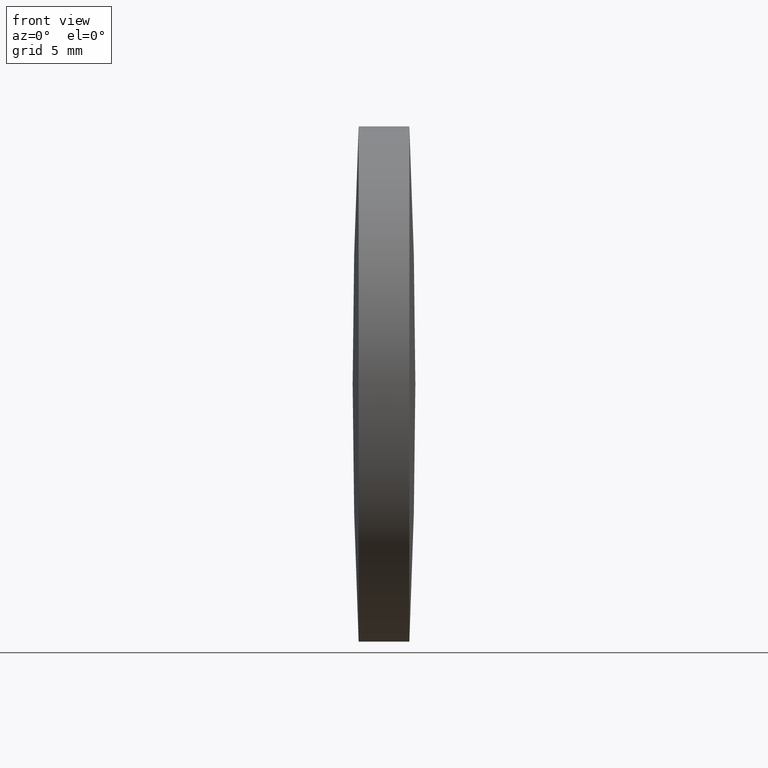
[diagram: clean part render]
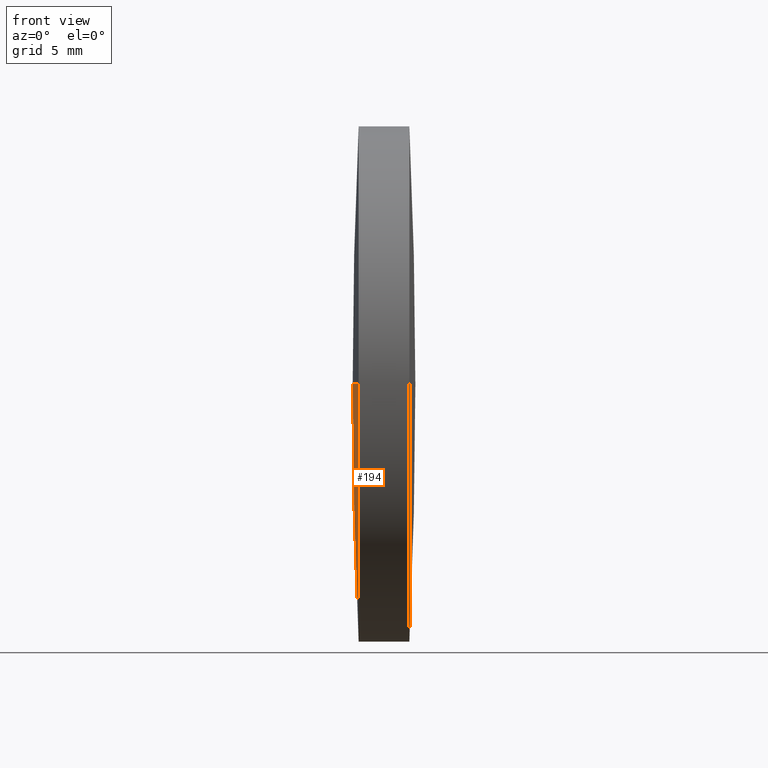
[diagram: same view with one face highlighted and labeled with its STEP entity id]
A machine part, front view. The second image highlights one B-rep face of the part: STEP entity #194.
In plain terms, the highlighted spherical surface has radius 273.559 mm.
Its self-contained STEP definition (entity closure, byte-faithful):
#7 = VERTEX_POINT ( 'NONE', #86 ) ;
#8 = DIRECTION ( 'NONE',  ( 0.0000000000000000000, 1.000000000000000000, 1.224646799147353200E-016 ) ) ;
#10 = CARTESIAN_POINT ( 'NONE',  ( 85.20819446037681600, 48.61611302318478100, 0.0000000000000000000 ) ) ;
#14 = DIRECTION ( 'NONE',  ( 0.0000000000000000000, 1.000000000000000000, 0.0000000000000000000 ) ) ;
#15 = EDGE_CURVE ( 'NONE', #249, #7, #320, .T. ) ;
#16 = AXIS2_PLACEMENT_3D ( 'NONE', #67, #38, #14 ) ;
#27 = EDGE_LOOP ( 'NONE', ( #95, #324, #232, #328 ) ) ;
#38 = DIRECTION ( 'NONE',  ( -0.0000000000000000000, 0.0000000000000000000, -1.000000000000000000 ) ) ;
#42 = EDGE_CURVE ( 'NONE', #7, #178, #262, .T. ) ;
#44 = CARTESIAN_POINT ( 'NONE',  ( 358.4720611425593100, 48.61611302318401300, 0.0000000000000000000 ) ) ;
#54 = DIRECTION ( 'NONE',  ( 0.0000000000000000000, 0.0000000000000000000, 1.000000000000000000 ) ) ;
#61 = FACE_OUTER_BOUND ( 'NONE', #27, .T. ) ;
#66 = EDGE_CURVE ( 'NONE', #178, #243, #69, .T. ) ;
#67 = CARTESIAN_POINT ( 'NONE',  ( 358.4720611425593100, 48.61611302318401300, 0.0000000000000000000 ) ) ;
#69 = CIRCLE ( 'NONE', #326, 273.5588251804310300 ) ;
#86 = CARTESIAN_POINT ( 'NONE',  ( 85.20819446037681600, 48.61611302318478100, -12.69999999999999600 ) ) ;
#95 = ORIENTED_EDGE ( 'NONE', *, *, #15, .T. ) ;
#170 = DIRECTION ( 'NONE',  ( -1.000000000000000000, -0.0000000000000000000, -0.0000000000000000000 ) ) ;
#178 = VERTEX_POINT ( 'NONE', #204 ) ;
#182 = DIRECTION ( 'NONE',  ( 1.000000000000000000, 0.0000000000000000000, 0.0000000000000000000 ) ) ;
#194 = ADVANCED_FACE ( 'NONE', ( #61 ), #203, .T. ) ;
#195 = AXIS2_PLACEMENT_3D ( 'NONE', #308, #170, #254 ) ;
#203 = SPHERICAL_SURFACE ( 'NONE', #16, 273.5588251804310300 ) ;
#204 = CARTESIAN_POINT ( 'NONE',  ( 85.20819446037680200, 35.91611302318423100, -1.555301434917111200E-015 ) ) ;
#205 = AXIS2_PLACEMENT_3D ( 'NONE', #44, #213, #182 ) ;
#213 = DIRECTION ( 'NONE',  ( -0.0000000000000000000, 0.0000000000000000000, 1.000000000000000000 ) ) ;
#223 = DIRECTION ( 'NONE',  ( 0.0000000000000000000, 1.224646799147353200E-016, -1.000000000000000000 ) ) ;
#232 = ORIENTED_EDGE ( 'NONE', *, *, #66, .T. ) ;
#243 = VERTEX_POINT ( 'NONE', #312 ) ;
#249 = VERTEX_POINT ( 'NONE', #339 ) ;
#254 = DIRECTION ( 'NONE',  ( 0.0000000000000000000, 0.0000000000000000000, 1.000000000000000000 ) ) ;
#262 = CIRCLE ( 'NONE', #314, 12.69999999999999600 ) ;
#266 = CIRCLE ( 'NONE', #205, 273.5588251804310300 ) ;
#272 = EDGE_CURVE ( 'NONE', #249, #243, #266, .T. ) ;
#304 = DIRECTION ( 'NONE',  ( -1.000000000000000000, -0.0000000000000000000, -0.0000000000000000000 ) ) ;
#308 = CARTESIAN_POINT ( 'NONE',  ( 85.20819446037681600, 48.61611302318478100, 0.0000000000000000000 ) ) ;
#312 = CARTESIAN_POINT ( 'NONE',  ( 84.91323596212829700, 48.61611302318402700, 0.0000000000000000000 ) ) ;
#314 = AXIS2_PLACEMENT_3D ( 'NONE', #10, #304, #54 ) ;
#320 = CIRCLE ( 'NONE', #195, 12.69999999999999600 ) ;
#324 = ORIENTED_EDGE ( 'NONE', *, *, #42, .T. ) ;
#326 = AXIS2_PLACEMENT_3D ( 'NONE', #335, #223, #8 ) ;
#328 = ORIENTED_EDGE ( 'NONE', *, *, #272, .F. ) ;
#335 = CARTESIAN_POINT ( 'NONE',  ( 358.4720611425593100, 48.61611302318401300, 0.0000000000000000000 ) ) ;
#339 = CARTESIAN_POINT ( 'NONE',  ( 85.20819446037680200, 61.31611302318455600, 0.0000000000000000000 ) ) ;